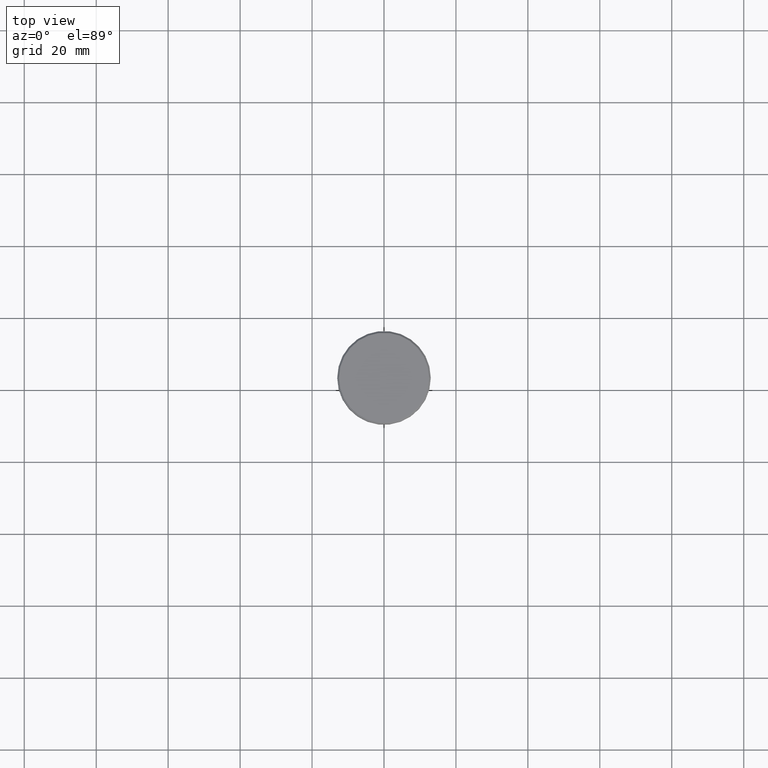
[diagram: clean part render]
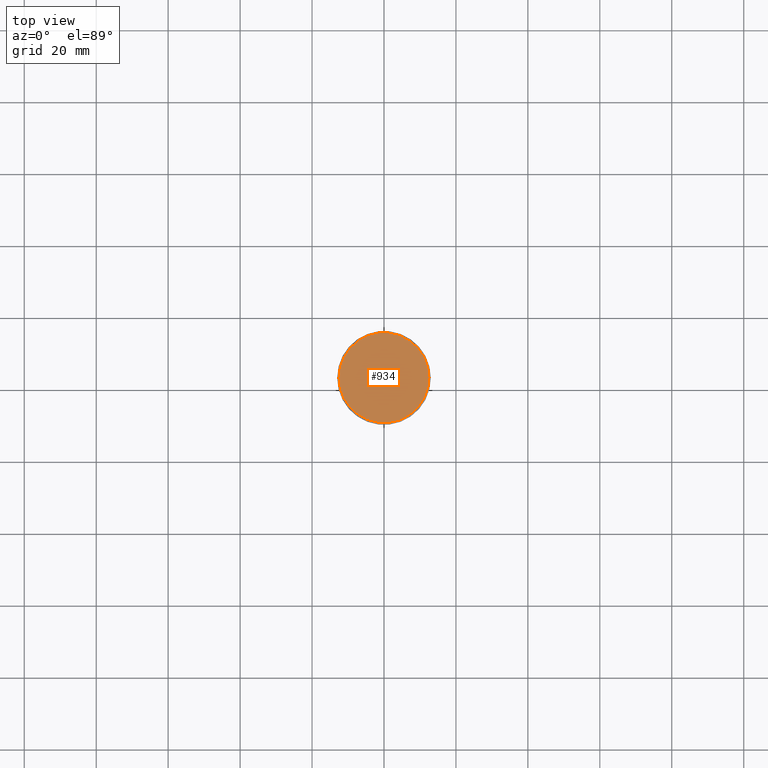
[diagram: same view with one face highlighted and labeled with its STEP entity id]
A machine part, top view. The second image highlights one B-rep face of the part: STEP entity #934.
In plain terms, the highlighted planar face has unit normal (0, -0, 1).
Its self-contained STEP definition (entity closure, byte-faithful):
#18 = VERTEX_POINT ( 'NONE', #300 ) ;
#23 = CIRCLE ( 'NONE', #138, 12.50000000000006750 ) ;
#67 = ORIENTED_EDGE ( 'NONE', *, *, #373, .T. ) ;
#82 = DIRECTION ( 'NONE',  ( 1.000000000000000000, 0.000000000000000000, 0.000000000000000000 ) ) ;
#138 = AXIS2_PLACEMENT_3D ( 'NONE', #260, #914, #728 ) ;
#150 = FACE_OUTER_BOUND ( 'NONE', #1136, .T. ) ;
#152 = AXIS2_PLACEMENT_3D ( 'NONE', #899, #639, #82 ) ;
#169 = DIRECTION ( 'NONE',  ( 0.000000000000000000, -0.000000000000000000, 1.000000000000000000 ) ) ;
#181 = CIRCLE ( 'NONE', #152, 12.50000000000006750 ) ;
#255 = AXIS2_PLACEMENT_3D ( 'NONE', #898, #169, #923 ) ;
#260 = CARTESIAN_POINT ( 'NONE',  ( 0.000000000000000000, 0.000000000000000000, 0.000000000000000000 ) ) ;
#286 = ORIENTED_EDGE ( 'NONE', *, *, #975, .T. ) ;
#300 = CARTESIAN_POINT ( 'NONE',  ( -12.50000000000006750, 0.000000000000000000, 0.000000000000000000 ) ) ;
#352 = CARTESIAN_POINT ( 'NONE',  ( 12.50000000000006750, 1.561424668912879450E-15, 0.000000000000000000 ) ) ;
#373 = EDGE_CURVE ( 'NONE', #448, #18, #181, .T. ) ;
#448 = VERTEX_POINT ( 'NONE', #352 ) ;
#517 = PLANE ( 'NONE',  #255 ) ;
#639 = DIRECTION ( 'NONE',  ( -0.000000000000000000, -0.000000000000000000, 1.000000000000000000 ) ) ;
#728 = DIRECTION ( 'NONE',  ( 1.000000000000000000, 0.000000000000000000, 0.000000000000000000 ) ) ;
#898 = CARTESIAN_POINT ( 'NONE',  ( 0.000000000000000000, 0.000000000000000000, 0.000000000000000000 ) ) ;
#899 = CARTESIAN_POINT ( 'NONE',  ( 0.000000000000000000, 0.000000000000000000, 0.000000000000000000 ) ) ;
#914 = DIRECTION ( 'NONE',  ( -0.000000000000000000, -0.000000000000000000, 1.000000000000000000 ) ) ;
#923 = DIRECTION ( 'NONE',  ( 1.000000000000000000, 0.000000000000000000, 0.000000000000000000 ) ) ;
#934 = ADVANCED_FACE ( 'NONE', ( #150 ), #517, .T. ) ;
#975 = EDGE_CURVE ( 'NONE', #18, #448, #23, .T. ) ;
#1136 = EDGE_LOOP ( 'NONE', ( #286, #67 ) ) ;